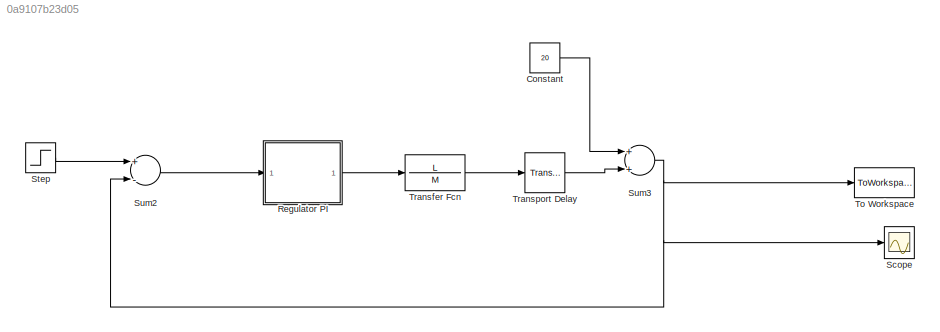
MODEL slx_0a9107b23d05
KIND model
BLOCK [Constant] Constant
  Value = 20
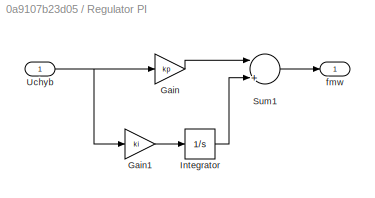
BLOCK [SubSystem] Regulator PI
  FunctionWithSeparateData = off
  MaskHideContents = off
  MinAlgLoopOccurrences = off
  Opaque = off
  Ports = [1, 1]
  PropExecContextOutsideSubsystem = off
  RTWSystemCode = Auto
  RequestExecContextInheritance = off
BLOCK [Gain] Regulator PI/Gain
  Gain = kp
  OutDataTypeStr = Inherit: Inherit via internal rule
  ParamDataTypeStr = Inherit: Inherit via internal rule
  SaturateOnIntegerOverflow = off
BLOCK [Gain] Regulator PI/Gain1
  Gain = ki
  OutDataTypeStr = Inherit: Inherit via internal rule
  ParamDataTypeStr = Inherit: Inherit via internal rule
  SaturateOnIntegerOverflow = off
BLOCK [Integrator] Regulator PI/Integrator
  Ports = [1, 1]
BLOCK [Sum] Regulator PI/Sum1
  InputSameDT = off
  Inputs = |++
  OutDataTypeStr = Inherit: Inherit via internal rule
  Ports = [2, 1]
  SaturateOnIntegerOverflow = off
BLOCK [Inport] Regulator PI/Uchyb
  IconDisplay = Port number
BLOCK [Outport] Regulator PI/fmw
  IconDisplay = Port number
BLOCK [Scope] Scope
  Floating = off
  NumInputPorts = 1
  Ports = [1]
  ShowLegends = off
BLOCK [Step] Step
  After = Twew1_0+dTwew1_0
  Before = Twew1_0
  SampleTime = 0
  Time = steptime
  VectorParams1D = off
BLOCK [Sum] Sum2
  InputSameDT = off
  Inputs = +-
  OutDataTypeStr = Inherit: Inherit via internal rule
  Ports = [2, 1]
  SaturateOnIntegerOverflow = off
BLOCK [Sum] Sum3
  InputSameDT = off
  OutDataTypeStr = Inherit: Inherit via internal rule
  Ports = [2, 1]
  SaturateOnIntegerOverflow = off
BLOCK [ToWorkspace] To Workspace
  FixptAsFi = on
  MaxDataPoints = inf
  Ports = [1]
  SampleTime = -1
  VariableName = simout
BLOCK [TransferFcn] Transfer Fcn
  Denominator = M
  Numerator = L
BLOCK [TransportDelay] Transport Delay
  DelayTime = T30
  Ports = [1, 1]
LINE Constant:1 -> Sum3:1
LINE Regulator PI/Gain1:1 -> Regulator PI/Integrator:1
LINE Regulator PI/Gain:1 -> Regulator PI/Sum1:1
LINE Regulator PI/Integrator:1 -> Regulator PI/Sum1:2
LINE Regulator PI/Sum1:1 -> Regulator PI/fmw:1
NET Regulator PI/Uchyb:1 -> Regulator PI/Gain1:1, Regulator PI/Gain:1
LINE Regulator PI:1 -> Transfer Fcn:1
LINE Step:1 -> Sum2:1
LINE Sum2:1 -> Regulator PI:1
NET Sum3:1 -> Scope:1, Sum2:2, To Workspace:1
LINE Transfer Fcn:1 -> Transport Delay:1
LINE Transport Delay:1 -> Sum3:2
note: NET lines group one-source signal fan-out (src -> all destinations, sorted); 1:1 wires keep LINE
